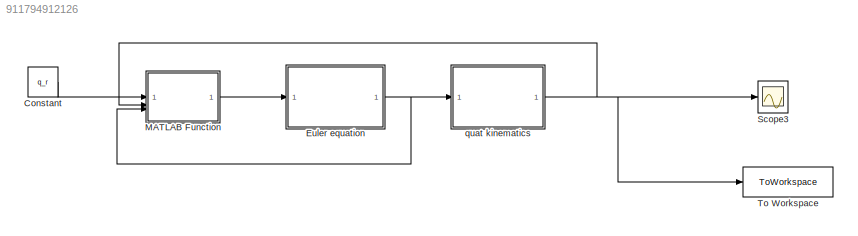
MODEL slx_911794912126
KIND model
CONFIG AbsTol = auto
CONFIG EnableMultiTasking = off
CONFIG FixedStep = auto
CONFIG MaxStep = auto
CONFIG MinStep = auto
CONFIG RelTol = 1e-3
CONFIG SampleTimeConstraint = Unconstrained
CONFIG SolverName = VariableStepAuto
CONFIG StartTime = 0.0
CONFIG StopTime = Tfin
BLOCK [Constant] Constant
  Value = q_r
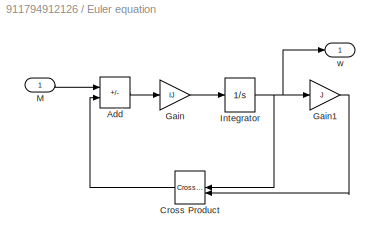
BLOCK [SubSystem] Euler equation
  AncestorBlock = lib_rotations_2014/Euler equation
BLOCK [Sum] Euler equation/Add
  IconShape = rectangular
  Inputs = +-
BLOCK [Reference] Euler equation/Cross Product  REF=vrlib/Utilities/Cross Product
  NameLocation = top
  SourceBlock = vrlib/Utilities/Cross Product
  SourceType = Cross Product
BLOCK [Gain] Euler equation/Gain
  Gain = IJ
  Multiplication = Matrix(K*u)
BLOCK [Gain] Euler equation/Gain1
  Gain = J
  Multiplication = Matrix(K*u)
BLOCK [Integrator] Euler equation/Integrator
  InitialCondition = w0
BLOCK [Inport] Euler equation/M
BLOCK [Outport] Euler equation/w
  PortDimensions = 3
  VectorParamsAs1DForOutWhenUnconnected = off
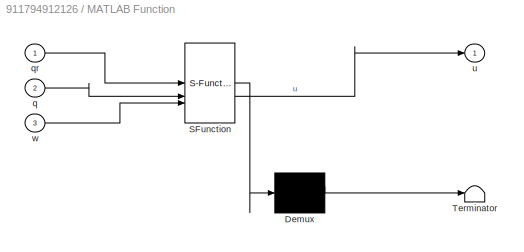
BLOCK [SubSystem] MATLAB Function
  ErrorFcn = Stateflow.Translate.translate
  PermitHierarchicalResolution = ExplicitOnly
  SFBlockType = MATLAB Function
  TreatAsAtomicUnit = on
BLOCK [Demux] MATLAB Function/ Demux 
  Outputs = 1
BLOCK [S-Function] MATLAB Function/ SFunction 
  EnableBusSupport = on
  FunctionName = sf_sfun
  PortCounts = [3 2]
  SFcnIsStateOwnerBlock = off
  SFunctionDeploymentMode = off
  Tag = Stateflow S-Function 3
BLOCK [Terminator] MATLAB Function/ Terminator 
BLOCK [Inport] MATLAB Function/q
  Port = 2
BLOCK [Inport] MATLAB Function/qr
BLOCK [Outport] MATLAB Function/u
BLOCK [Inport] MATLAB Function/w
  Port = 3
BLOCK [Scope] Scope3
  Floating = off
  NumInputPorts = 1
  ScopeSpecificationString = Simulink.scopes.TimeScopeBlockCfg('CurrentConfiguration', extmgr.ConfigurationSet(extmgr.Configuration('Core','General UI',true),extmgr.Configuration('Core','Source UI',true),extmgr.Configuration('Sources','WiredSimulink',true,'DataLoggingVariableName','ScopeData4'),extmgr.Configuration('Visuals','Time Domain',true,'SerializedDisplays',{struct('MinYLimReal','-0.70128','MaxYLimReal','1.18903','YLab...<+1469ch>
BLOCK [ToWorkspace] To Workspace
  FixptAsFi = on
  MaxDataPoints = inf
  SampleTime = -1
  SaveFormat = Timeseries
  VariableName = result
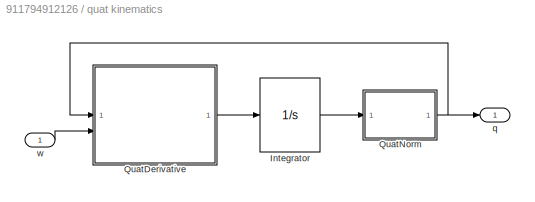
BLOCK [SubSystem] quat kinematics
  AncestorBlock = lib_rotations_2014/quat kinematics
BLOCK [Integrator] quat kinematics/Integrator
  InitialCondition = q0
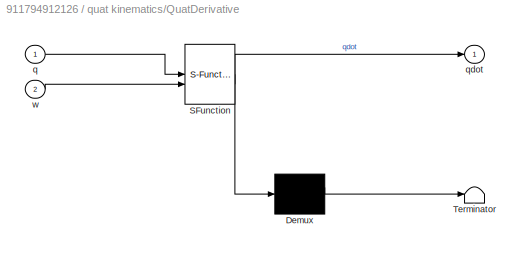
BLOCK [SubSystem] quat kinematics/QuatDerivative
  ErrorFcn = Stateflow.Translate.translate
  PermitHierarchicalResolution = ExplicitOnly
  SFBlockType = MATLAB Function
  TreatAsAtomicUnit = on
BLOCK [Demux] quat kinematics/QuatDerivative/ Demux 
  Outputs = 1
BLOCK [S-Function] quat kinematics/QuatDerivative/ SFunction 
  EnableBusSupport = on
  FunctionName = sf_sfun
  PortCounts = [2 2]
  SFcnIsStateOwnerBlock = off
  SFunctionDeploymentMode = off
  Tag = Stateflow S-Function 1
BLOCK [Terminator] quat kinematics/QuatDerivative/ Terminator 
BLOCK [Inport] quat kinematics/QuatDerivative/q
BLOCK [Outport] quat kinematics/QuatDerivative/qdot
  VectorParamsAs1DForOutWhenUnconnected = off
BLOCK [Inport] quat kinematics/QuatDerivative/w
  Port = 2
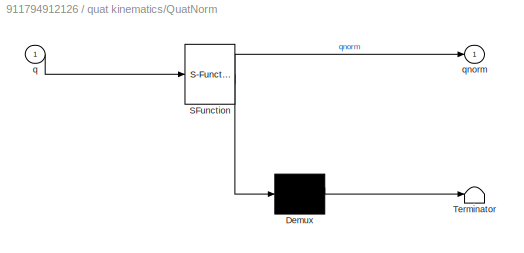
BLOCK [SubSystem] quat kinematics/QuatNorm
  ErrorFcn = Stateflow.Translate.translate
  PermitHierarchicalResolution = ExplicitOnly
  SFBlockType = MATLAB Function
  TreatAsAtomicUnit = on
BLOCK [Demux] quat kinematics/QuatNorm/ Demux 
  Outputs = 1
BLOCK [S-Function] quat kinematics/QuatNorm/ SFunction 
  EnableBusSupport = on
  FunctionName = sf_sfun
  PortCounts = [1 2]
  SFcnIsStateOwnerBlock = off
  SFunctionDeploymentMode = off
  Tag = Stateflow S-Function 2
BLOCK [Terminator] quat kinematics/QuatNorm/ Terminator 
BLOCK [Inport] quat kinematics/QuatNorm/q
BLOCK [Outport] quat kinematics/QuatNorm/qnorm
  VectorParamsAs1DForOutWhenUnconnected = off
BLOCK [Outport] quat kinematics/q
  PortDimensions = 4
  VectorParamsAs1DForOutWhenUnconnected = off
BLOCK [Inport] quat kinematics/w
  PortDimensions = 3
LINE Constant:1 -> MATLAB Function:1
NET Euler equation:1 -> MATLAB Function:3, quat kinematics:1
LINE MATLAB Function:1 -> Euler equation:1
NET quat kinematics:1 -> MATLAB Function:2, Scope3:1, To Workspace:1
note: NET lines group one-source signal fan-out (src -> all destinations, sorted); 1:1 wires keep LINE
CHART quat kinematics/QuatDerivative states=1 transitions=1
  STATE_LABEL 'eML_blk_kernel()'
  STATE_LABEL 'SCRIPT:\nfunction qdot= QuatDerivative(q,w)\n%#codegen\nomegaq=[0; w];\nQ=[q(1) -q(2) -q(3) -q(4);\n    q(2) q(1) -q(4) q(3);\n    q(3) q(4) q(1) -q(2);\n    q(4) -q(3) q(2) q(1)];\nqdot=Q*omegaq/2;\n'
CHART quat kinematics/QuatNorm states=1 transitions=1
  STATE_LABEL 'eML_blk_kernel()'
  STATE_LABEL "SCRIPT:\nfunction qnorm = QuatNorm(q)\n%#codegen\nqnorm=zeros(4,1);\nq2=sqrt(q'*q);\nqnorm=q/q2;\n"
CHART MATLAB Function states=1 transitions=1
  STATE_LABEL 'eML_blk_kernel()'
  STATE_LABEL "SCRIPT:\nfunction u = controller(qr,q,w)\n\nqinv = [q(1); -q(2:end)];\nqtilde = quatprod(qinv,qr);\n\nkp = 500;\nkd = 1000;\n\nu = kp*qtilde(2:4) - kd*w;\n\nend\n\n%% Quatprod\nfunction r = quatprod(q,p)\n\nqq=[0 -q(4) q(3);\n    q(4) 0 -q(2);\n    -q(3) q(2) 0];\n\nQ=[q(1) -q(2:4)'; \n    q(2:4) q(1)*eye(3)+qq];\n\nr=Q*p;\n\nend"
CHART  states=0 transitions=0
CHART  states=0 transitions=0
CHART  states=0 transitions=0
